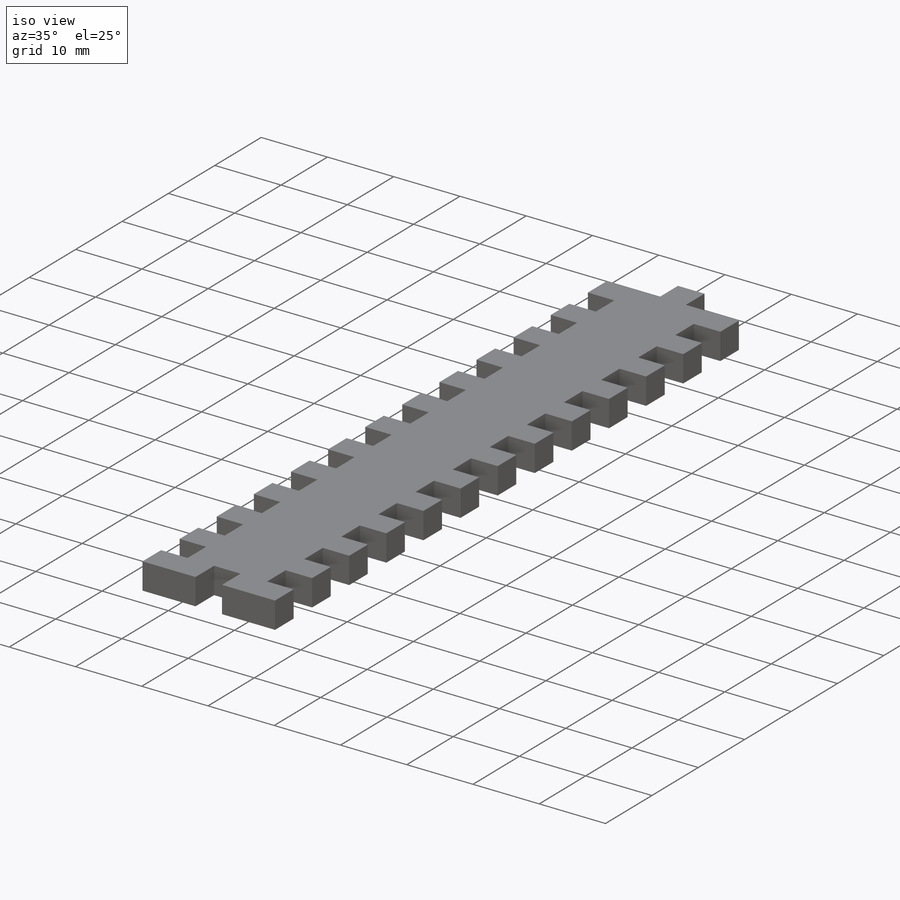
[diagram: iso view]
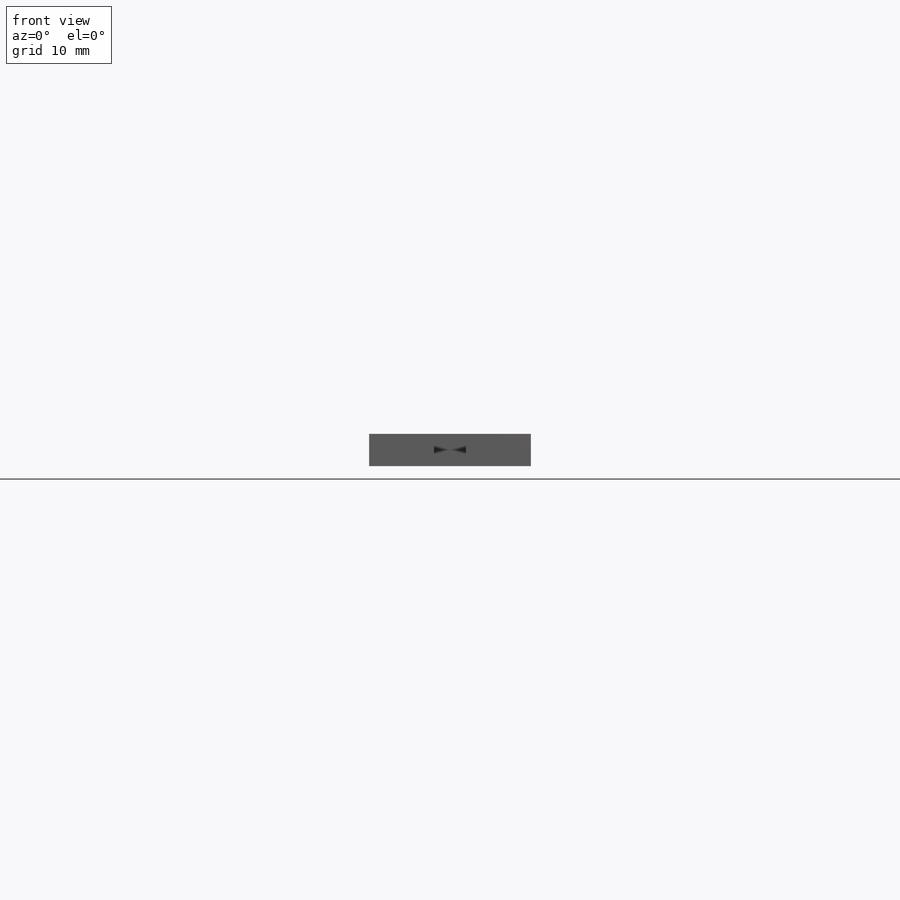
[diagram: front view]
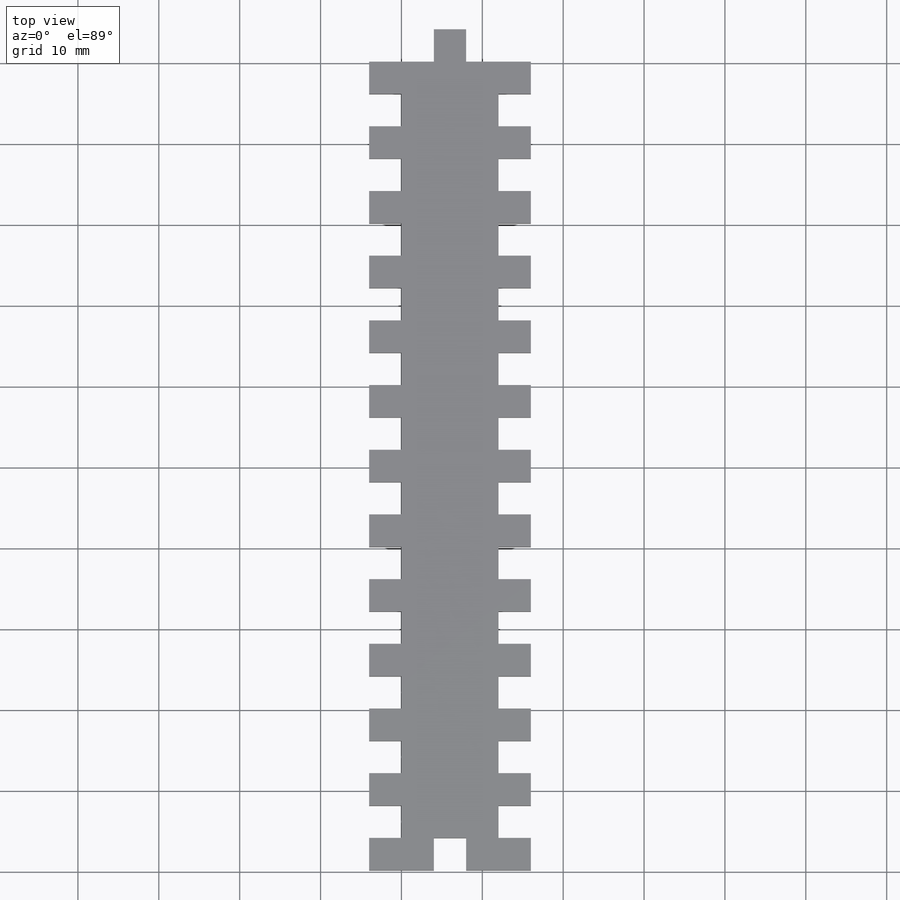
[diagram: top view]
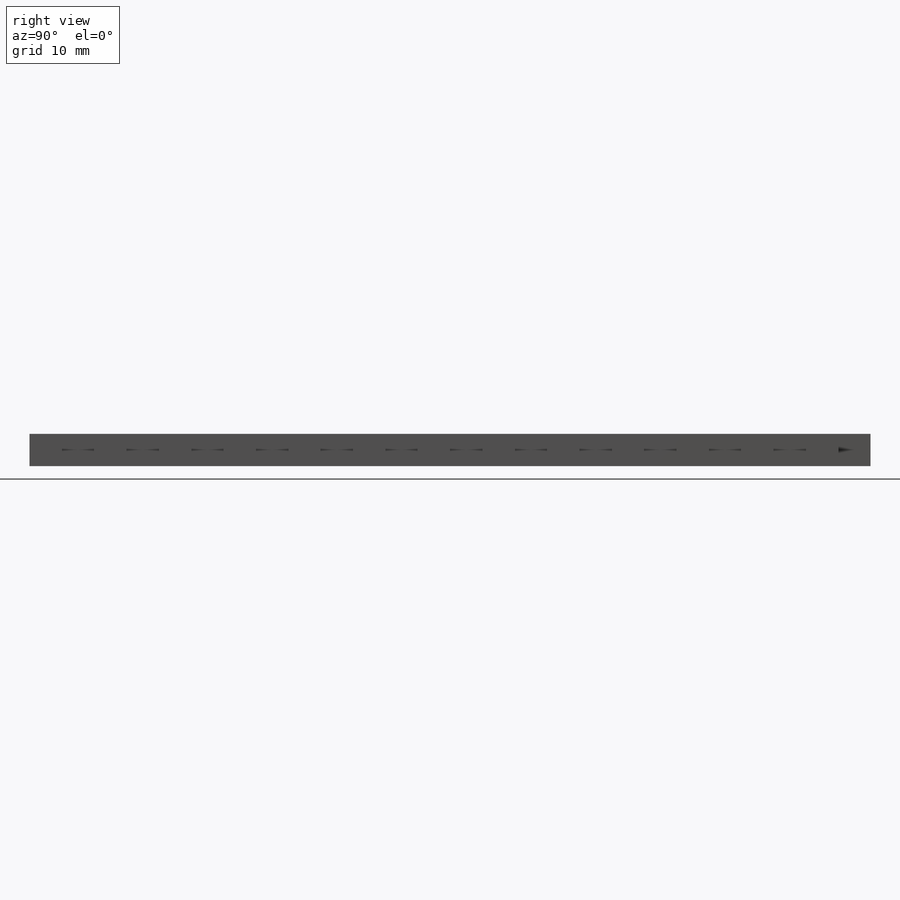
[diagram: right view]
SOLIDWORKS PART (.sldprt)
format: sldprt  version: not decoded by parser v0  size: 498,176 bytes
history: native  units: mm
features: sketch x3, extrude x2, material x1, cut_extrude x1 (+13 scaffold rows collapsed)
feature tree (20):
  scaffold x13  (default folders/planes/origin — collapsed)
  material  "Cedar"
  sketch  "Sketch1"  dims[D1=4.0mm D2=4.0mm D3=4.0mm D4=4.0mm D5=12.0mm D6=4.0mm D7=4.0mm]
  extrude  "Boss-Extrude1"  Depth=4mm
  sketch  "Sketch2"  dims[c1.D1=4.0mm c1.D2=2.0mm c1.D3=4.0mm c2.D3=90.0deg c3.D3=4.0mm c4.D3=90.0deg c5.D3=2.0mm]
  extrude  "Boss-Extrude2"  Depth=4mm
  sketch  "Sketch3"  dims[D1=4.0mm D2=4.0mm]
  cut_extrude  "Cut-Extrude1"  Depth=10mm
decode coverage: 6 of 6 modeling features carry decoded parameters
note: suppression state not decoded; provenance and decode notes live in map.json
